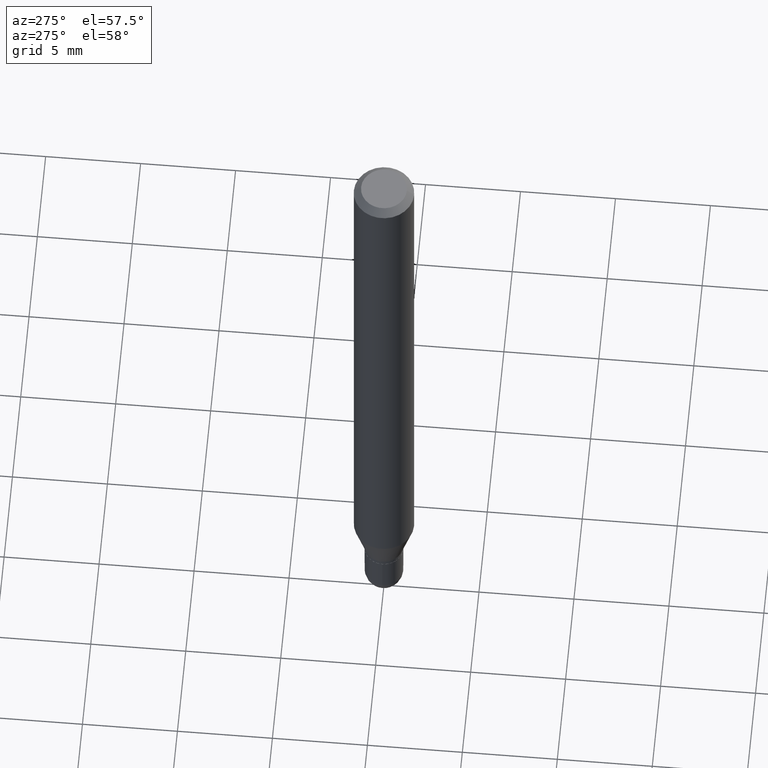
[diagram: clean part render]
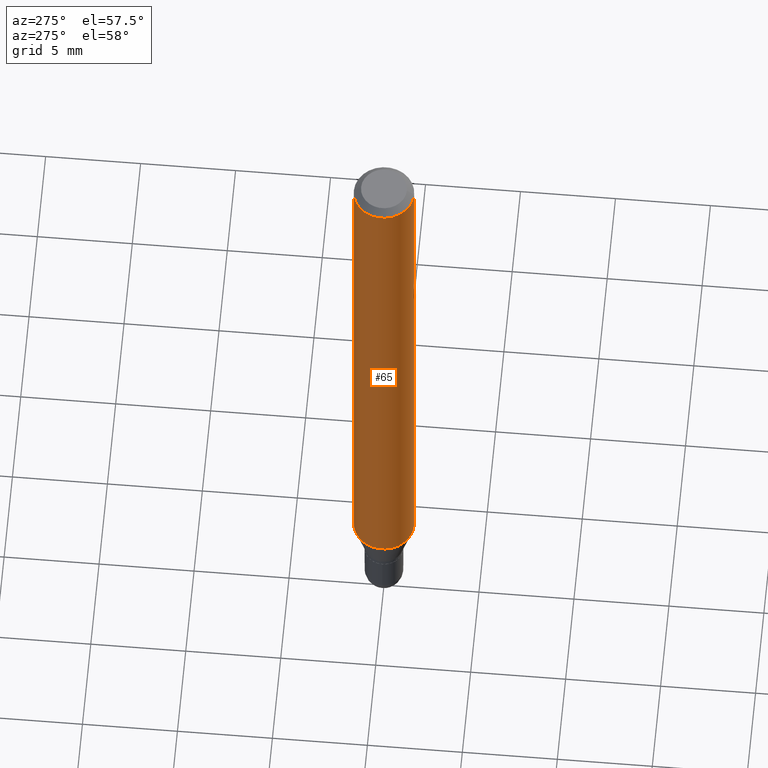
[diagram: same view with one face highlighted and labeled with its STEP entity id]
A machine part, auxiliary view. The second image highlights one B-rep face of the part: STEP entity #65.
In plain terms, the highlighted cylindrical surface (edge-blend (fillet) strip) has radius 1.5875 mm, axis along (-0, 0, 1).
Its self-contained STEP definition (entity closure, byte-faithful):
#5 = DIRECTION ( 'NONE',  ( -2.445456004173908568E-29, 3.491499672051869513E-15, 1.000000000000000000 ) ) ;
#17 = EDGE_CURVE ( 'NONE', #503, #199, #256, .T. ) ;
#27 = CYLINDRICAL_SURFACE ( 'NONE', #252, 0.06250000000000000000 ) ;
#30 = EDGE_LOOP ( 'NONE', ( #463, #151, #222, #80 ) ) ;
#57 = CIRCLE ( 'NONE', #177, 0.06250000000000000000 ) ;
#65 = ADVANCED_FACE ( 'NONE', ( #495 ), #27, .T. ) ;
#80 = ORIENTED_EDGE ( 'NONE', *, *, #255, .F. ) ;
#84 = CARTESIAN_POINT ( 'NONE',  ( 4.440892098500625669E-16, 0.06250000000000000000, -2.182187295032418446E-16 ) ) ;
#110 = DIRECTION ( 'NONE',  ( -2.445456004173908288E-29, 3.491499672051869513E-15, 1.000000000000000000 ) ) ;
#122 = VECTOR ( 'NONE', #110, 39.37007874015748143 ) ;
#127 = CARTESIAN_POINT ( 'NONE',  ( -4.364351673553598685E-16, -0.06250000000000444089, -1.286028856829700251 ) ) ;
#139 = DIRECTION ( 'NONE',  ( -6.982962677686265922E-15, -1.000000000000000000, 3.491499672051869513E-15 ) ) ;
#150 = CIRCLE ( 'NONE', #185, 0.06250000000000000000 ) ;
#151 = ORIENTED_EDGE ( 'NONE', *, *, #200, .T. ) ;
#164 = CARTESIAN_POINT ( 'NONE',  ( 4.440892098500941706E-16, 0.06249999999999995143, -0.01500000000000022669 ) ) ;
#177 = AXIS2_PLACEMENT_3D ( 'NONE', #476, #5, #435 ) ;
#180 = VERTEX_POINT ( 'NONE', #164 ) ;
#185 = AXIS2_PLACEMENT_3D ( 'NONE', #281, #432, #399 ) ;
#190 = CARTESIAN_POINT ( 'NONE',  ( 0.000000000000000000, 0.000000000000000000, 0.000000000000000000 ) ) ;
#199 = VERTEX_POINT ( 'NONE', #474 ) ;
#200 = EDGE_CURVE ( 'NONE', #458, #503, #150, .T. ) ;
#222 = ORIENTED_EDGE ( 'NONE', *, *, #17, .T. ) ;
#252 = AXIS2_PLACEMENT_3D ( 'NONE', #190, #502, #139 ) ;
#255 = EDGE_CURVE ( 'NONE', #180, #199, #57, .T. ) ;
#256 = LINE ( 'NONE', #462, #122 ) ;
#281 = CARTESIAN_POINT ( 'NONE',  ( 3.144926989475098704E-29, -4.490169331870139407E-15, -1.286028856829700473 ) ) ;
#288 = LINE ( 'NONE', #84, #397 ) ;
#330 = DIRECTION ( 'NONE',  ( -2.445456004173908288E-29, 3.491499672051869513E-15, 1.000000000000000000 ) ) ;
#350 = EDGE_CURVE ( 'NONE', #458, #180, #288, .T. ) ;
#389 = CARTESIAN_POINT ( 'NONE',  ( 4.440892098500941706E-16, 0.06249999999999554523, -1.286028856829700695 ) ) ;
#397 = VECTOR ( 'NONE', #330, 39.37007874015748143 ) ;
#399 = DIRECTION ( 'NONE',  ( -6.982962677686265922E-15, -1.000000000000000000, 4.370956789862821150E-15 ) ) ;
#432 = DIRECTION ( 'NONE',  ( -2.445456004173908568E-29, 3.491499672051869513E-15, 1.000000000000000000 ) ) ;
#435 = DIRECTION ( 'NONE',  ( -6.982962677686265922E-15, -1.000000000000000000, 3.483106191921935554E-15 ) ) ;
#458 = VERTEX_POINT ( 'NONE', #389 ) ;
#462 = CARTESIAN_POINT ( 'NONE',  ( -4.364351673553916201E-16, -0.06250000000000000000, 2.182187295032418446E-16 ) ) ;
#463 = ORIENTED_EDGE ( 'NONE', *, *, #350, .F. ) ;
#474 = CARTESIAN_POINT ( 'NONE',  ( -4.364351673553912750E-16, -0.06250000000000005551, -0.01499999999999979128 ) ) ;
#476 = CARTESIAN_POINT ( 'NONE',  ( 3.668184006260864919E-31, -5.237249508077807031E-17, -0.01500000000000000812 ) ) ;
#495 = FACE_OUTER_BOUND ( 'NONE', #30, .T. ) ;
#502 = DIRECTION ( 'NONE',  ( -2.445456004173908568E-29, 3.491499672051869513E-15, 1.000000000000000000 ) ) ;
#503 = VERTEX_POINT ( 'NONE', #127 ) ;